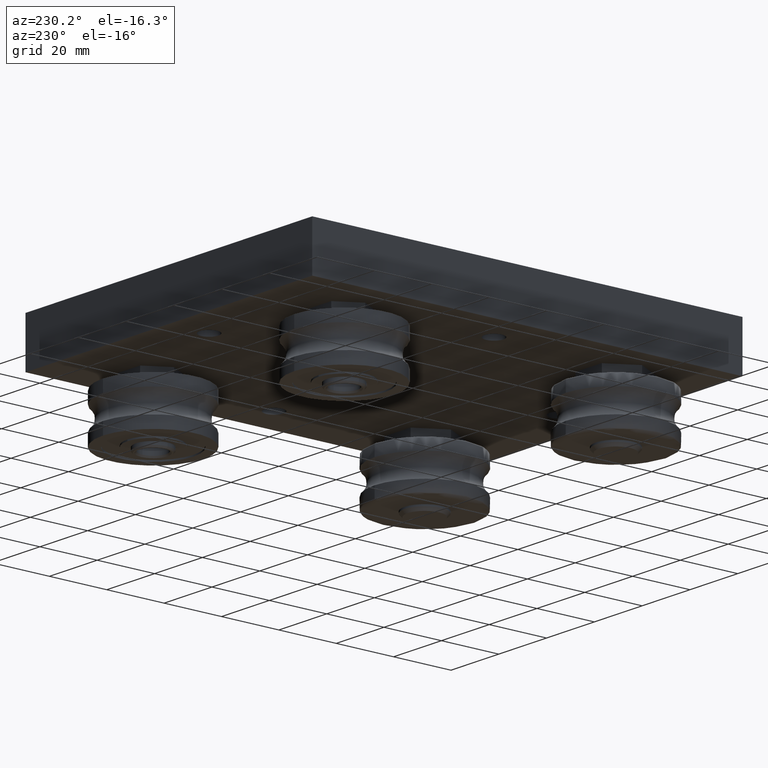
[diagram: clean part render]
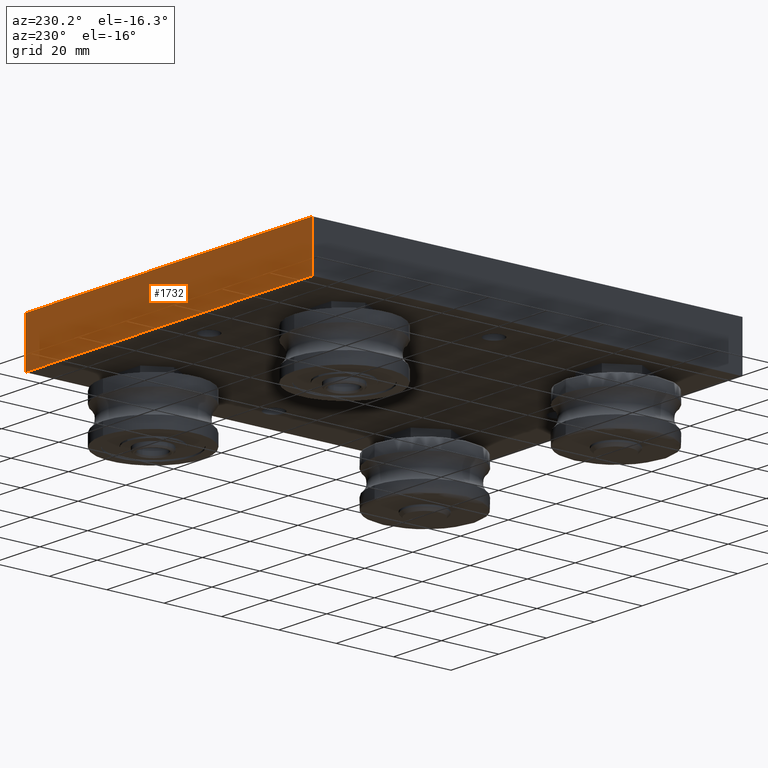
[diagram: same view with one face highlighted and labeled with its STEP entity id]
A machine part, auxiliary view. The second image highlights one B-rep face of the part: STEP entity #1732.
In plain terms, the highlighted planar face has unit normal (0, 1, 0).
Its self-contained STEP definition (entity closure, byte-faithful):
#205=PLANE('',#1978);
#270=FACE_OUTER_BOUND('',#396,.T.);
#396=EDGE_LOOP('',(#1283,#1284,#1285,#1286));
#531=LINE('',#2851,#628);
#535=LINE('',#2858,#632);
#536=LINE('',#2861,#633);
#537=LINE('',#2862,#634);
#628=VECTOR('',#2279,10.);
#632=VECTOR('',#2285,10.);
#633=VECTOR('',#2288,10.);
#634=VECTOR('',#2289,10.);
#853=VERTEX_POINT('',#2848);
#854=VERTEX_POINT('',#2850);
#856=VERTEX_POINT('',#2856);
#857=VERTEX_POINT('',#2860);
#1013=EDGE_CURVE('',#853,#854,#531,.T.);
#1017=EDGE_CURVE('',#856,#853,#535,.T.);
#1018=EDGE_CURVE('',#857,#856,#536,.T.);
#1019=EDGE_CURVE('',#857,#854,#537,.T.);
#1283=ORIENTED_EDGE('',*,*,#1017,.F.);
#1284=ORIENTED_EDGE('',*,*,#1018,.F.);
#1285=ORIENTED_EDGE('',*,*,#1019,.T.);
#1286=ORIENTED_EDGE('',*,*,#1013,.F.);
#1732=ADVANCED_FACE('',(#270),#205,.T.);
#1978=AXIS2_PLACEMENT_3D('',#2859,#2286,#2287);
#2279=DIRECTION('',(1.,0.,0.));
#2285=DIRECTION('',(0.,0.,-1.));
#2286=DIRECTION('center_axis',(0.,1.,0.));
#2287=DIRECTION('ref_axis',(-1.,0.,0.));
#2288=DIRECTION('',(-1.,0.,0.));
#2289=DIRECTION('',(0.,0.,-1.));
#2848=CARTESIAN_POINT('',(-60.,75.,-8.275));
#2850=CARTESIAN_POINT('',(60.,75.,-8.275));
#2851=CARTESIAN_POINT('',(-60.,75.,-8.275));
#2856=CARTESIAN_POINT('',(-60.,75.,8.275));
#2858=CARTESIAN_POINT('',(-60.,75.,0.));
#2859=CARTESIAN_POINT('Origin',(60.,75.,0.));
#2860=CARTESIAN_POINT('',(60.,75.,8.275));
#2861=CARTESIAN_POINT('',(-60.,75.,8.275));
#2862=CARTESIAN_POINT('',(60.,75.,0.));